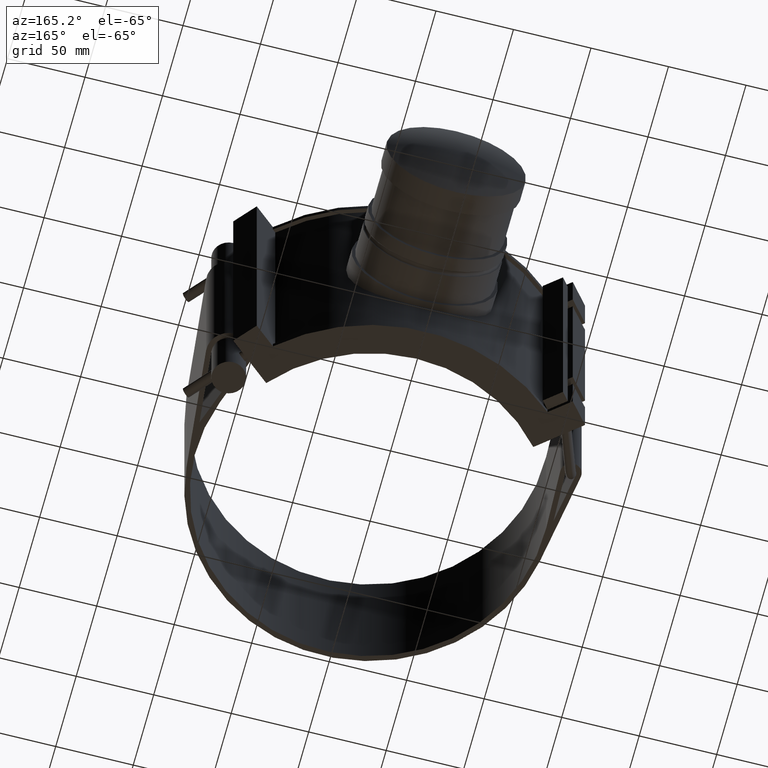
[diagram: clean part render]
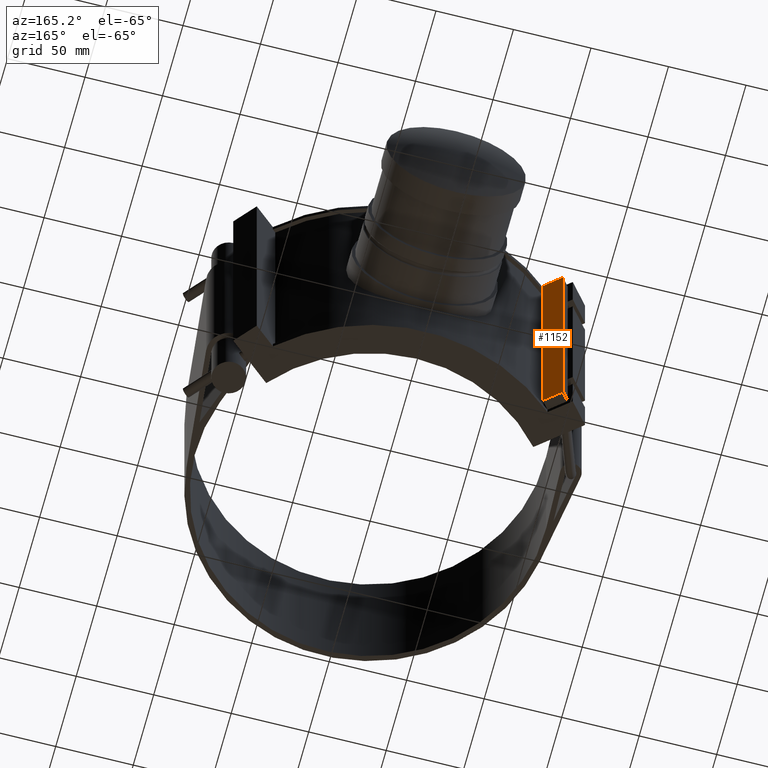
[diagram: same view with one face highlighted and labeled with its STEP entity id]
A machine part, auxiliary view. The second image highlights one B-rep face of the part: STEP entity #1152.
In plain terms, the highlighted planar face has unit normal (0.6428, 0.766, 0).
Its self-contained STEP definition (entity closure, byte-faithful):
#36=LINE('',#1886,#139);
#38=LINE('',#1892,#141);
#43=LINE('',#1899,#146);
#44=LINE('',#1900,#147);
#139=VECTOR('',#1393,168.96);
#141=VECTOR('',#1397,168.96);
#146=VECTOR('',#1404,13.9476901847923);
#147=VECTOR('',#1405,13.9476901847923);
#235=PLANE('',#1237);
#318=FACE_OUTER_BOUND('',#396,.T.);
#396=EDGE_LOOP('',(#839,#840,#841,#842));
#554=VERTEX_POINT('',#1877);
#557=VERTEX_POINT('',#1884);
#559=VERTEX_POINT('',#1889);
#560=VERTEX_POINT('',#1891);
#667=EDGE_CURVE('',#557,#554,#36,.T.);
#669=EDGE_CURVE('',#560,#559,#38,.T.);
#674=EDGE_CURVE('',#559,#554,#43,.T.);
#675=EDGE_CURVE('',#557,#560,#44,.T.);
#839=ORIENTED_EDGE('',*,*,#674,.T.);
#840=ORIENTED_EDGE('',*,*,#667,.F.);
#841=ORIENTED_EDGE('',*,*,#675,.T.);
#842=ORIENTED_EDGE('',*,*,#669,.T.);
#1152=ADVANCED_FACE('',(#318),#235,.T.);
#1237=AXIS2_PLACEMENT_3D('',#1898,#1402,#1403);
#1393=DIRECTION('',(0.,0.,-1.));
#1397=DIRECTION('',(0.,0.,-1.));
#1402=DIRECTION('center_axis',(0.64278760968654,0.766044443118978,0.));
#1403=DIRECTION('ref_axis',(0.766044443118977,-0.64278760968654,0.));
#1404=DIRECTION('',(-0.766044443118978,0.64278760968654,0.));
#1405=DIRECTION('',(0.766044443118978,-0.64278760968654,0.));
#1877=CARTESIAN_POINT('',(-94.7759841682755,112.127532786333,-84.48));
#1884=CARTESIAN_POINT('',(-94.7759841682755,112.127532786333,84.48));
#1886=CARTESIAN_POINT('',(-94.7759841682755,112.127532786333,84.48));
#1889=CARTESIAN_POINT('',(-84.0914336078703,103.162130351802,-84.48));
#1891=CARTESIAN_POINT('',(-84.0914336078703,103.162130351802,84.48));
#1892=CARTESIAN_POINT('',(-84.0914336078703,103.162130351802,84.48));
#1898=CARTESIAN_POINT('Origin',(-94.7759841682755,112.127532786333,84.48));
#1899=CARTESIAN_POINT('',(-92.1048465281742,109.8861821777,-84.48));
#1900=CARTESIAN_POINT('',(-94.7759841682755,112.127532786333,84.48));